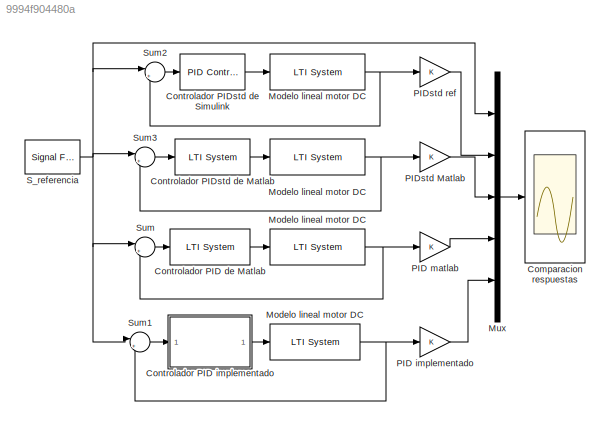
MODEL slx_9994f904480a
KIND model
CONFIG AbsTol = auto
CONFIG EnableMultiTasking = off
CONFIG FixedStep = auto
CONFIG MaxStep = auto
CONFIG MinStep = auto
CONFIG RelTol = 1e-3
CONFIG SampleTimeConstraint = Unconstrained
CONFIG SolverName = VariableStepAuto
CONFIG StartTime = 0.0
CONFIG StopTime = Tend
BLOCK [Reference]        Modelo lineal motor DC        REF=cstblocks/LTI System
  Ports = [1, 1]
  SourceBlock = cstblocks/LTI System
  SourceProductBaseCode = CT
  SourceType = LTI Block
BLOCK [Reference]      Modelo lineal motor DC      REF=cstblocks/LTI System
  Ports = [1, 1]
  SourceBlock = cstblocks/LTI System
  SourceProductBaseCode = CT
  SourceType = LTI Block
BLOCK [Reference]     Modelo lineal motor DC    REF=cstblocks/LTI System
  Ports = [1, 1]
  SourceBlock = cstblocks/LTI System
  SourceProductBaseCode = CT
  SourceType = LTI Block
BLOCK [Reference]   Modelo lineal motor DC    REF=cstblocks/LTI System
  Ports = [1, 1]
  SourceBlock = cstblocks/LTI System
  SourceProductBaseCode = CT
  SourceType = LTI Block
BLOCK [Scope] Comparacion respuestas
  Floating = off
  NumInputPorts = 1
  Ports = [1]
  ScopeSpecificationString = Simulink.scopes.TimeScopeBlockCfg('CurrentConfiguration', extmgr.ConfigurationSet(extmgr.Configuration('Core','General UI',true),extmgr.Configuration('Core','Source UI',true),extmgr.Configuration('Sources','WiredSimulink',true,'DataLoggingVariableName','ScopeData1'),extmgr.Configuration('Visuals','Time Domain',true,'SerializedDisplays',{struct('MinYLimReal','-0.12516','MaxYLimReal','1.12641','YLab...<+1708ch>
BLOCK [Reference] Controlador PID de Matlab  REF=cstblocks/LTI System
  Ports = [1, 1]
  SourceBlock = cstblocks/LTI System
  SourceProductBaseCode = CT
  SourceType = LTI Block
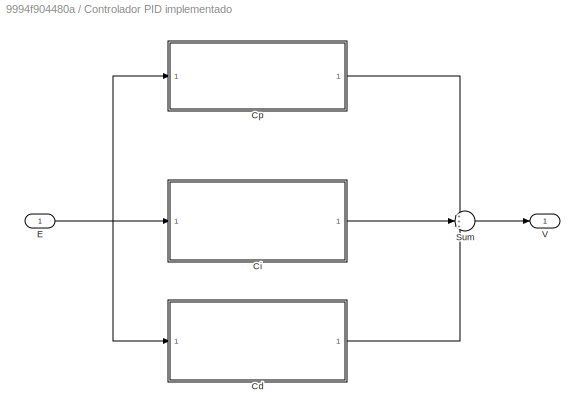
BLOCK [SubSystem] Controlador PID implementado
  Ports = [1, 1]
  RequestExecContextInheritance = off
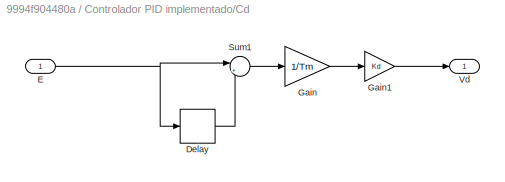
BLOCK [SubSystem] Controlador PID implementado/Cd
  Ports = [1, 1]
  RequestExecContextInheritance = off
BLOCK [Delay] Controlador PID implementado/Cd/Delay
  DelayLength = 1
  InitialCondition = 0
  InputPortMap = u0
  Ports = [1, 1]
BLOCK [Inport] Controlador PID implementado/Cd/E
BLOCK [Gain] Controlador PID implementado/Cd/Gain
  Gain = 1/Tm
BLOCK [Gain] Controlador PID implementado/Cd/Gain1
  Gain = Kd
BLOCK [Sum] Controlador PID implementado/Cd/Sum1
  Inputs = |+-
  Ports = [2, 1]
BLOCK [Outport] Controlador PID implementado/Cd/Vd
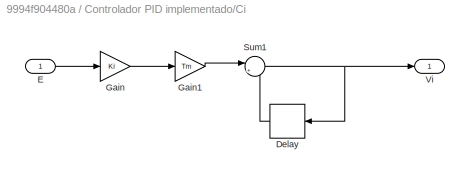
BLOCK [SubSystem] Controlador PID implementado/Ci
  Ports = [1, 1]
  RequestExecContextInheritance = off
BLOCK [Delay] Controlador PID implementado/Ci/Delay
  DelayLength = 1
  InitialCondition = 0
  InputPortMap = u0
  Ports = [1, 1]
BLOCK [Inport] Controlador PID implementado/Ci/E
BLOCK [Gain] Controlador PID implementado/Ci/Gain
  Gain = Ki
BLOCK [Gain] Controlador PID implementado/Ci/Gain1
  Gain = Tm
BLOCK [Sum] Controlador PID implementado/Ci/Sum1
  Inputs = |++
  Ports = [2, 1]
BLOCK [Outport] Controlador PID implementado/Ci/Vi
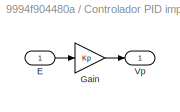
BLOCK [SubSystem] Controlador PID implementado/Cp
  Ports = [1, 1]
  RequestExecContextInheritance = off
BLOCK [Inport] Controlador PID implementado/Cp/E
BLOCK [Gain] Controlador PID implementado/Cp/Gain
  Gain = Kp
BLOCK [Outport] Controlador PID implementado/Cp/Vp
BLOCK [Inport] Controlador PID implementado/E
BLOCK [Sum] Controlador PID implementado/Sum
  Inputs = +++
  Ports = [3, 1]
BLOCK [Outport] Controlador PID implementado/V
BLOCK [Reference] Controlador PIDstd de Matlab  REF=cstblocks/LTI System
  Ports = [1, 1]
  SourceBlock = cstblocks/LTI System
  SourceProductBaseCode = CT
  SourceType = LTI Block
BLOCK [Reference] Controlador PIDstd de Simulink  REF=slpidlib/PID Controller
  Ports = [1, 1]
  SourceBlock = slpidlib/PID Controller
  SourceProductBaseCode = SL
  SourceType = PID 1dof
BLOCK [Mux] Mux
  DisplayOption = bar
  Inputs = 5
  Ports = [5, 1]
BLOCK [Gain] PID implementado
BLOCK [Gain] PID matlab
BLOCK [Gain] PIDstd Matlab
BLOCK [Gain] PIDstd ref
BLOCK [Reference] S_referencia  REF=dspsrcs4/Signal From
Workspace
  Ports = [0, 1]
  SourceBlock = dspsrcs4/Signal From\nWorkspace
  SourceProductBaseCode = DS
  SourceType = Signal From Workspace
BLOCK [Sum] Sum
  Inputs = |+-
  Ports = [2, 1]
BLOCK [Sum] Sum1
  Inputs = |+-
  Ports = [2, 1]
BLOCK [Sum] Sum2
  Inputs = |+-
  Ports = [2, 1]
BLOCK [Sum] Sum3
  Inputs = |+-
  Ports = [2, 1]
NET        Modelo lineal motor DC      :1 -> PIDstd Matlab:1, Sum3:2
NET      Modelo lineal motor DC    :1 -> PID matlab:1, Sum:2
NET     Modelo lineal motor DC  :1 -> PIDstd ref:1, Sum2:2
NET   Modelo lineal motor DC  :1 -> PID implementado:1, Sum1:2
LINE Controlador PID de Matlab:1 ->      Modelo lineal motor DC    :1
LINE Controlador PID implementado/Cd/Delay:1 -> Controlador PID implementado/Cd/Sum1:2
NET Controlador PID implementado/Cd/E:1 -> Controlador PID implementado/Cd/Delay:1, Controlador PID implementado/Cd/Sum1:1
LINE Controlador PID implementado/Cd/Gain1:1 -> Controlador PID implementado/Cd/Vd:1
LINE Controlador PID implementado/Cd/Gain:1 -> Controlador PID implementado/Cd/Gain1:1
LINE Controlador PID implementado/Cd/Sum1:1 -> Controlador PID implementado/Cd/Gain:1
LINE Controlador PID implementado/Cd:1 -> Controlador PID implementado/Sum:3
LINE Controlador PID implementado/Ci/Delay:1 -> Controlador PID implementado/Ci/Sum1:2
LINE Controlador PID implementado/Ci/E:1 -> Controlador PID implementado/Ci/Gain:1
LINE Controlador PID implementado/Ci/Gain1:1 -> Controlador PID implementado/Ci/Sum1:1
LINE Controlador PID implementado/Ci/Gain:1 -> Controlador PID implementado/Ci/Gain1:1
NET Controlador PID implementado/Ci/Sum1:1 -> Controlador PID implementado/Ci/Delay:1, Controlador PID implementado/Ci/Vi:1
LINE Controlador PID implementado/Ci:1 -> Controlador PID implementado/Sum:2
LINE Controlador PID implementado/Cp/E:1 -> Controlador PID implementado/Cp/Gain:1
LINE Controlador PID implementado/Cp/Gain:1 -> Controlador PID implementado/Cp/Vp:1
LINE Controlador PID implementado/Cp:1 -> Controlador PID implementado/Sum:1
NET Controlador PID implementado/E:1 -> Controlador PID implementado/Cd:1, Controlador PID implementado/Ci:1, Controlador PID implementado/Cp:1
LINE Controlador PID implementado/Sum:1 -> Controlador PID implementado/V:1
LINE Controlador PID implementado:1 ->   Modelo lineal motor DC  :1
LINE Controlador PIDstd de Matlab:1 ->        Modelo lineal motor DC      :1
LINE Controlador PIDstd de Simulink:1 ->     Modelo lineal motor DC  :1
LINE Mux:1 -> Comparacion respuestas:1
LINE PID implementado:1 -> Mux:5
LINE PID matlab:1 -> Mux:4
LINE PIDstd Matlab:1 -> Mux:3
LINE PIDstd ref:1 -> Mux:2
NET S_referencia:1 -> Mux:1, Sum1:1, Sum2:1, Sum3:1, Sum:1
LINE Sum1:1 -> Controlador PID implementado:1
LINE Sum2:1 -> Controlador PIDstd de Simulink:1
LINE Sum3:1 -> Controlador PIDstd de Matlab:1
LINE Sum:1 -> Controlador PID de Matlab:1
note: NET lines group one-source signal fan-out (src -> all destinations, sorted); 1:1 wires keep LINE
